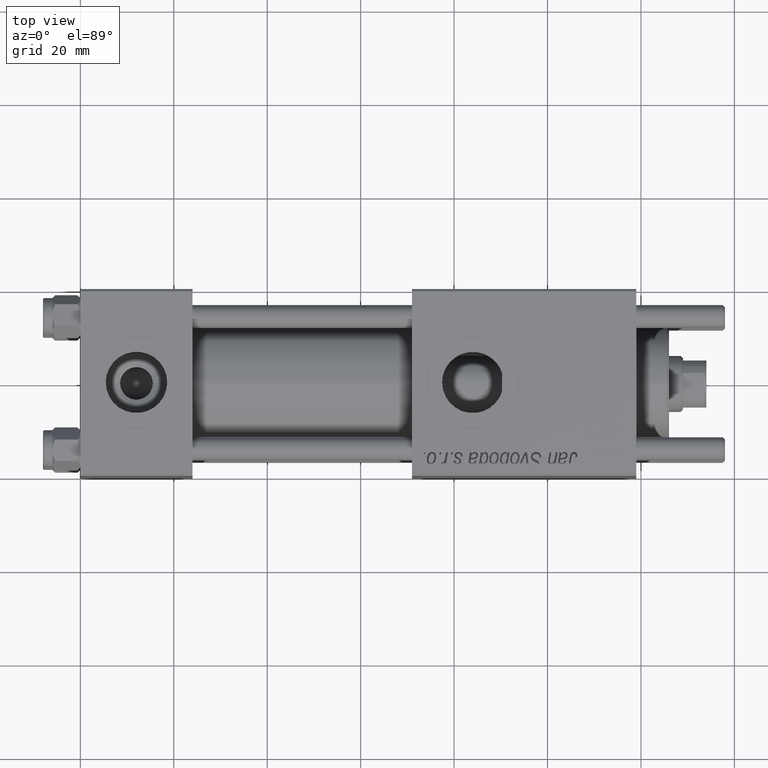
[diagram: clean part render]
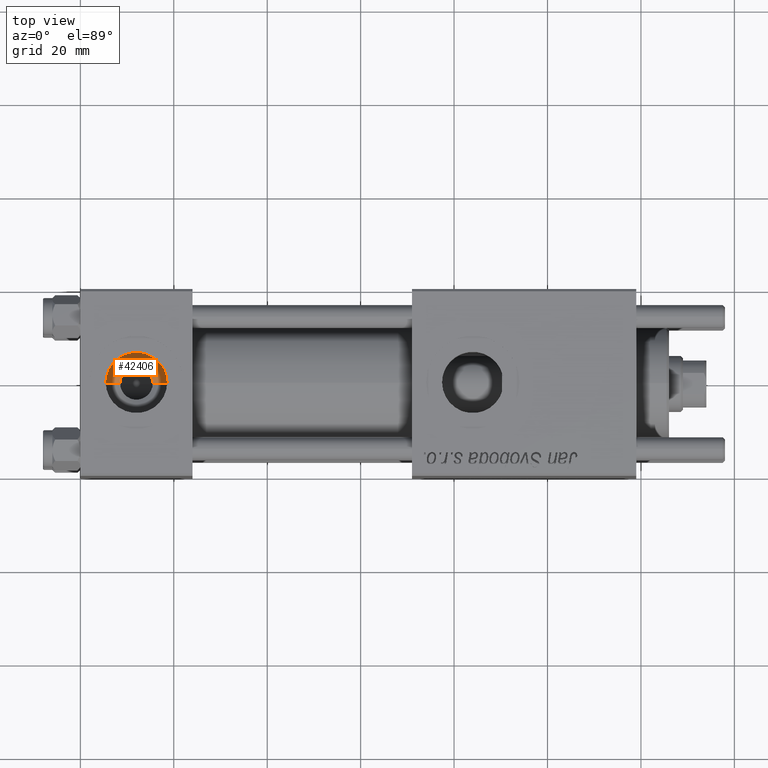
[diagram: same view with one face highlighted and labeled with its STEP entity id]
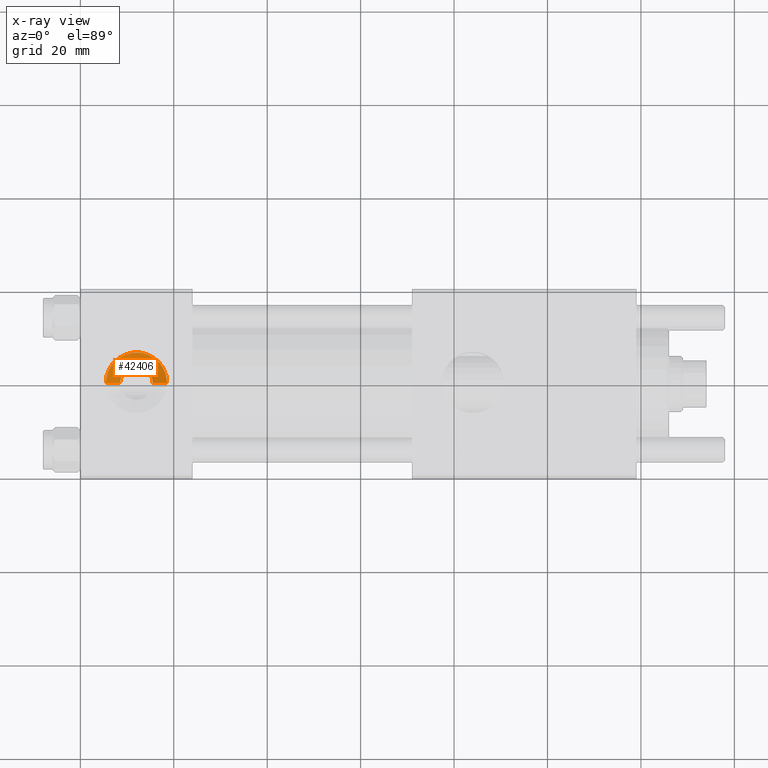
[diagram: x-ray of the same camera — body ghosted, the highlighted face saturated]
A machine part, top view. The second image highlights one B-rep face of the part: STEP entity #42406.
The next image is the same camera in x-ray: the body ghosted, the highlighted face saturated — about 0% of this face is hidden behind the body in this view.
In plain terms, the highlighted conical surface has half-angle 60.452 deg.
Its self-contained STEP definition (entity closure, byte-faithful):
#2417 = DIRECTION ( 'NONE',  ( 1.000000000000000000, 0.000000000000000000, 0.000000000000000000 ) ) ;
#2654 = LINE ( 'NONE', #47109, #11047 ) ;
#5066 = CIRCLE ( 'NONE', #6846, 6.579999999999999183 ) ;
#6709 = DIRECTION ( 'NONE',  ( -0.000000000000000000, -0.000000000000000000, -1.000000000000000000 ) ) ;
#6846 = AXIS2_PLACEMENT_3D ( 'NONE', #12152, #6709, #2417 ) ;
#7868 = EDGE_LOOP ( 'NONE', ( #15559, #19876, #16765, #35194 ) ) ;
#8370 = DIRECTION ( 'NONE',  ( 1.000000000000000000, 0.000000000000000000, 0.000000000000000000 ) ) ;
#11047 = VECTOR ( 'NONE', #54865, 1000.000000000000000 ) ;
#12152 = CARTESIAN_POINT ( 'NONE',  ( 12.00000000000000000, 1.540743955509788682E-30, 9.165987261146492315 ) ) ;
#12681 = FACE_OUTER_BOUND ( 'NONE', #7868, .T. ) ;
#14431 = EDGE_CURVE ( 'NONE', #30009, #48009, #2654, .T. ) ;
#15559 = ORIENTED_EDGE ( 'NONE', *, *, #56721, .F. ) ;
#16765 = ORIENTED_EDGE ( 'NONE', *, *, #14431, .T. ) ;
#19000 = CARTESIAN_POINT ( 'NONE',  ( 15.50000000000000000, 1.540743955509788682E-30, 7.419999999999996376 ) ) ;
#19350 = CARTESIAN_POINT ( 'NONE',  ( 18.57999999999999829, 1.540743955509788682E-30, 9.165987261146492315 ) ) ;
#19876 = ORIENTED_EDGE ( 'NONE', *, *, #33691, .F. ) ;
#23605 = LINE ( 'NONE', #41934, #39982 ) ;
#27155 = CARTESIAN_POINT ( 'NONE',  ( 12.00000000000000000, 1.540743955509788682E-30, 7.419999999999996376 ) ) ;
#28739 = VERTEX_POINT ( 'NONE', #38848 ) ;
#29971 = AXIS2_PLACEMENT_3D ( 'NONE', #30155, #47671, #8370 ) ;
#30009 = VERTEX_POINT ( 'NONE', #19000 ) ;
#30155 = CARTESIAN_POINT ( 'NONE',  ( 12.00000000000000000, 1.540743955509788682E-30, 7.419999999999996376 ) ) ;
#33691 = EDGE_CURVE ( 'NONE', #30009, #53134, #49853, .T. ) ;
#35194 = ORIENTED_EDGE ( 'NONE', *, *, #36532, .F. ) ;
#36532 = EDGE_CURVE ( 'NONE', #28739, #48009, #5066, .T. ) ;
#37022 = AXIS2_PLACEMENT_3D ( 'NONE', #27155, #44659, #55511 ) ;
#38848 = CARTESIAN_POINT ( 'NONE',  ( 5.420000000000000817, 8.058175938389596335E-16, 9.165987261146492315 ) ) ;
#39982 = VECTOR ( 'NONE', #41079, 1000.000000000000000 ) ;
#40959 = CONICAL_SURFACE ( 'NONE', #29971, 3.499999999999999556, 1.055086625138361267 ) ;
#41079 = DIRECTION ( 'NONE',  ( -0.8699429503561852961, 1.065372849594507103E-16, 0.4931523731318503412 ) ) ;
#41934 = CARTESIAN_POINT ( 'NONE',  ( 8.500000000000000000, 4.286263797015751879E-16, 7.419999999999996376 ) ) ;
#42406 = ADVANCED_FACE ( 'NONE', ( #12681 ), #40959, .F. ) ;
#44659 = DIRECTION ( 'NONE',  ( 0.000000000000000000, 0.000000000000000000, 1.000000000000000000 ) ) ;
#47109 = CARTESIAN_POINT ( 'NONE',  ( 15.50000000000000000, 1.540743955509788682E-30, 7.419999999999996376 ) ) ;
#47671 = DIRECTION ( 'NONE',  ( 0.000000000000000000, 0.000000000000000000, 1.000000000000000000 ) ) ;
#48009 = VERTEX_POINT ( 'NONE', #19350 ) ;
#49853 = CIRCLE ( 'NONE', #37022, 3.499999999999999556 ) ;
#53134 = VERTEX_POINT ( 'NONE', #56348 ) ;
#54865 = DIRECTION ( 'NONE',  ( 0.8699429503561852961, 0.000000000000000000, 0.4931523731318503412 ) ) ;
#55511 = DIRECTION ( 'NONE',  ( 1.000000000000000000, 0.000000000000000000, 0.000000000000000000 ) ) ;
#56348 = CARTESIAN_POINT ( 'NONE',  ( 8.500000000000000000, 4.286263797015752865E-16, 7.419999999999996376 ) ) ;
#56721 = EDGE_CURVE ( 'NONE', #53134, #28739, #23605, .T. ) ;